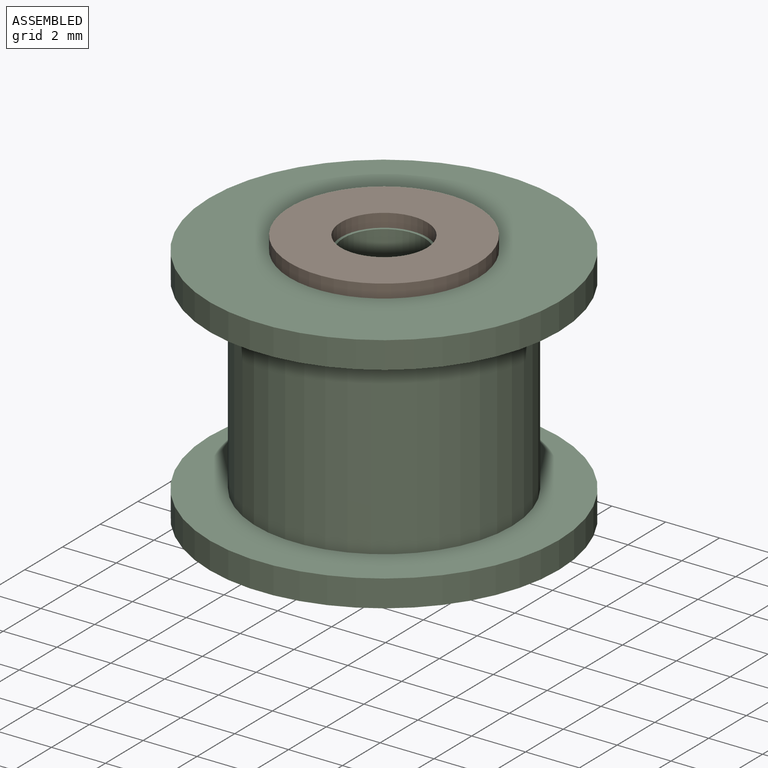
[diagram: assembled view]
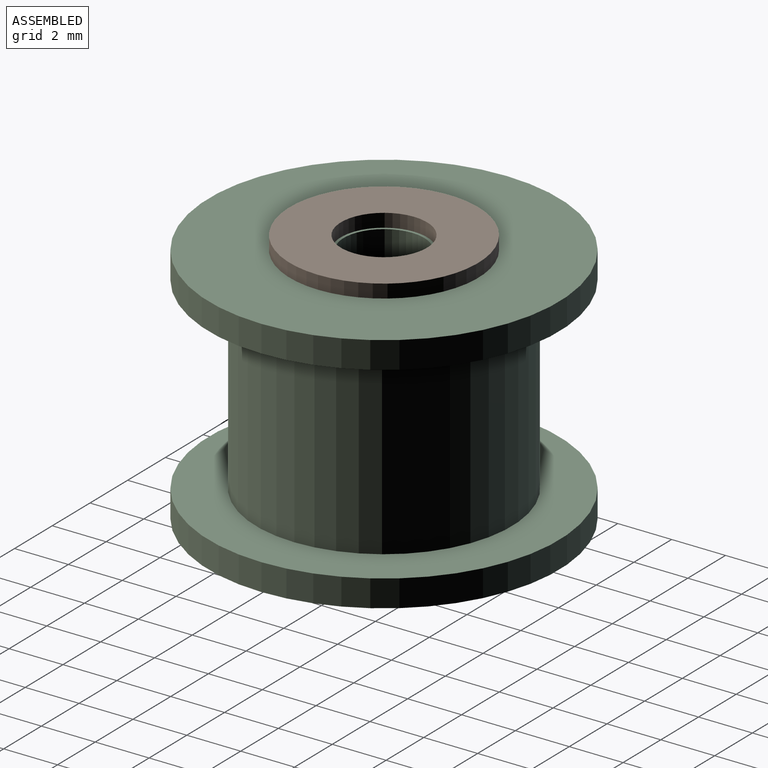
[diagram: assembled view, second angle]
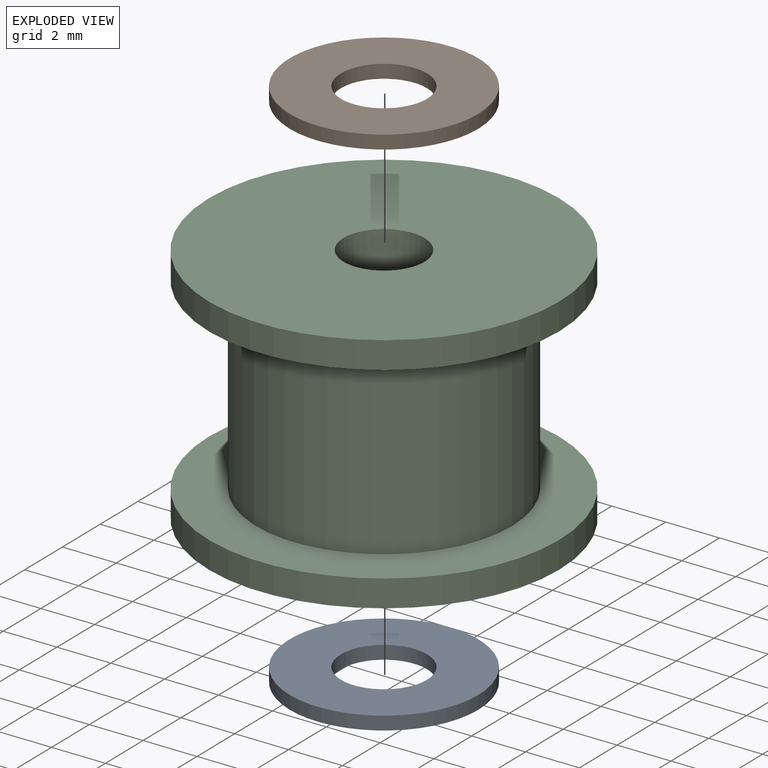
[diagram: exploded view]
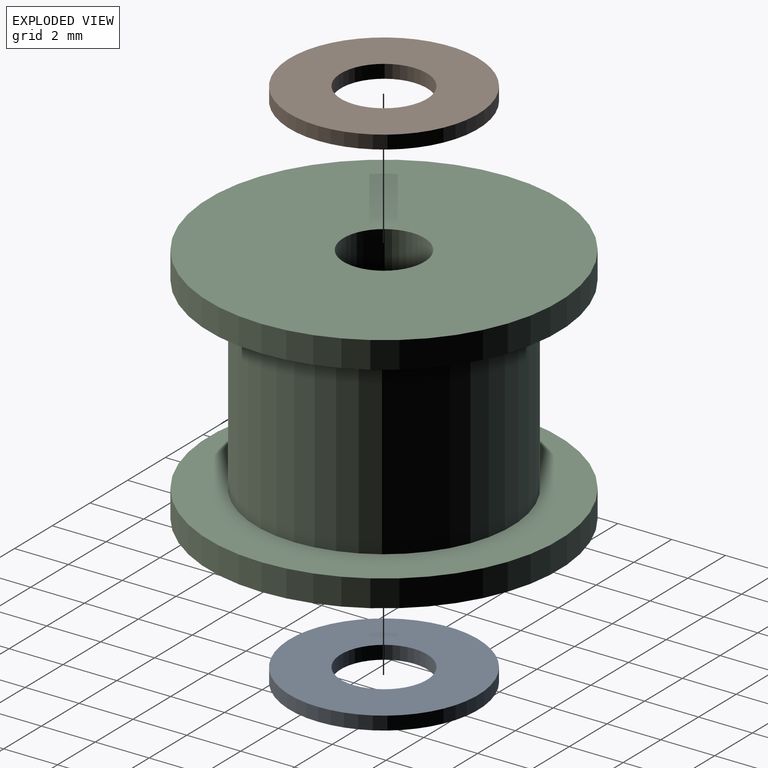
[diagram: exploded view, second angle]
ASSEMBLY  parts=3 mates=4
PART A: 4 faces, bbox 7x7x0.5 mm
  f0: cylinder r=1.6mm len=3.2mm, axis (0,0,-1), area 5mm2, adj f2,f3
  f1: cylinder r=3.5mm len=7mm, axis (0,0,-1), area 11mm2, adj f2,f3
  f2: plane 7x7mm, normal (0,0,1), area 30.4mm2, adj f0,f1
  f3: plane 7x7mm, normal (0,0,-1), area 30.4mm2, adj f0,f1
PART B: same geometry as A
PART C: 8 faces, bbox 13x13x9 mm
  f0: cylinder r=6.5mm len=13mm, axis (0,0,1), area 40.8mm2, adj f2,f3
  f1: cylinder r=1.5mm len=9mm, axis (0,0,1), area 84.8mm2, adj f2,f6
  f2: plane 13x13mm, normal (0,0,-1), area 125.7mm2, adj f0,f1
  f3: plane 13x13mm, normal (0,0,1), area 61.9mm2, adj f0,f4
  f4: cylinder r=4.75mm len=9.5mm, axis (0,0,-1), area 208.9mm2, adj f3,f5
  f5: plane 13x13mm, normal (0,0,-1), area 61.9mm2, adj f4,f7
  f6: plane 13x13mm, normal (0,0,1), area 125.7mm2, adj f1,f7
  f7: cylinder r=6.5mm len=13mm, axis (0,0,-1), area 40.8mm2, adj f5,f6
PLACE A t=(53.97,37.1,7.69)mm
PLACE B t=(53.97,37.1,17.19)mm
PLACE C t=(60.38,47.29,9.19)mm
MATE planar B.f0 <-> C.f0  axis (0,0,-1) through (43.97,27.1,17.19)mm
MATE cylindrical A.f0 <-> C.f0  axis (0,0,-1) through (43.97,27.1,7.94)mm
MATE cylindrical B.f0 <-> C.f0  axis (0,0,-1) through (43.97,27.1,17.44)mm
MATE planar A.f0 <-> C.f0  axis (0,0,1) through (43.97,27.1,8.19)mm
